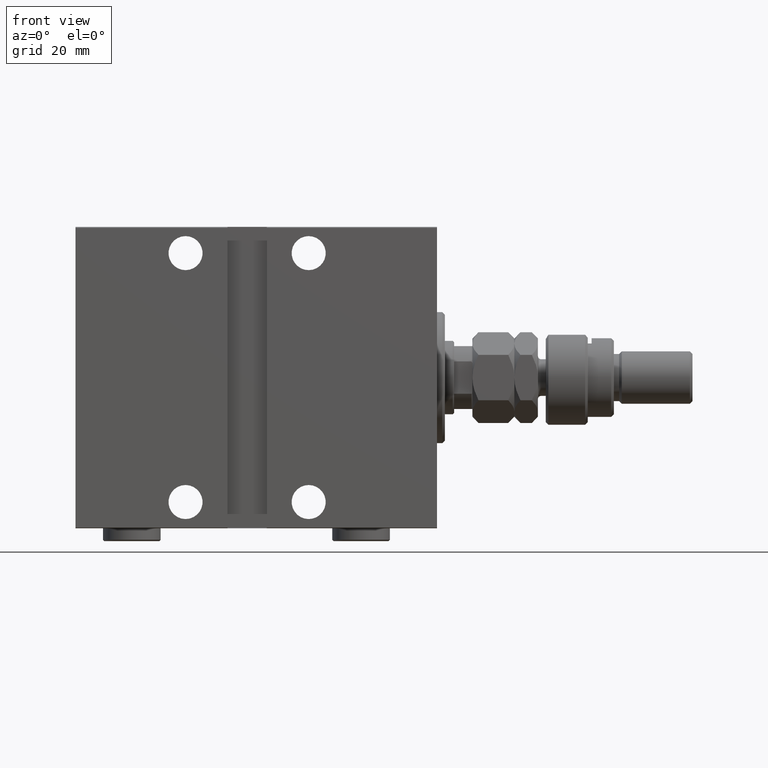
[diagram: clean part render]
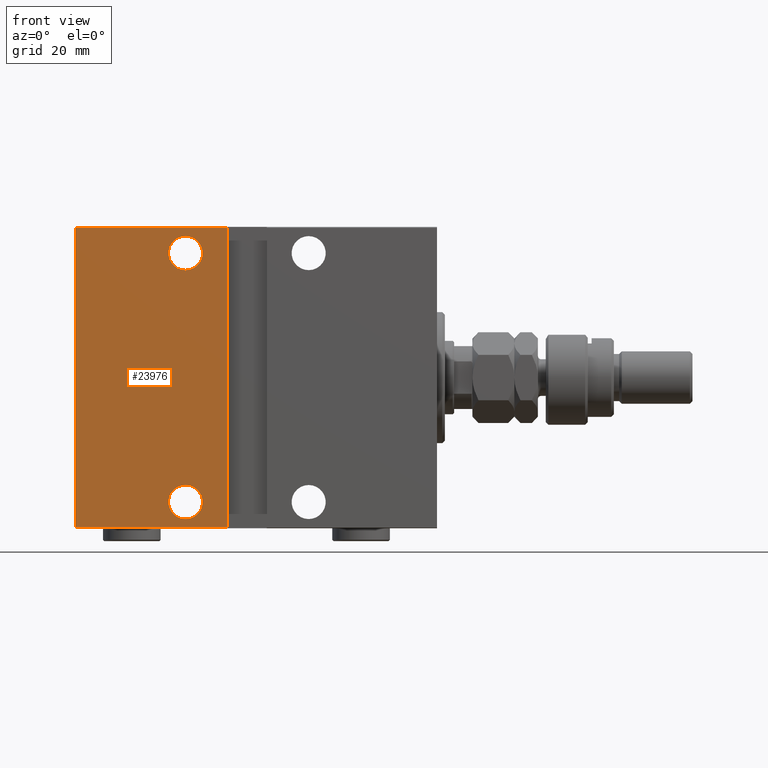
[diagram: same view with one face highlighted and labeled with its STEP entity id]
A machine part, front view. The second image highlights one B-rep face of the part: STEP entity #23976.
In plain terms, the highlighted planar face has unit normal (0, 1, 0).
Its self-contained STEP definition (entity closure, byte-faithful):
#588 = CARTESIAN_POINT ( 'NONE',  ( 96.00000000000000000, 45.00000000000002132, 47.50000000000001421 ) ) ;
#2031 = VECTOR ( 'NONE', #12045, 1000.000000000000000 ) ;
#2429 = ORIENTED_EDGE ( 'NONE', *, *, #10667, .T. ) ;
#2479 = LINE ( 'NONE', #39730, #17426 ) ;
#2963 = AXIS2_PLACEMENT_3D ( 'NONE', #11330, #33529, #36872 ) ;
#2982 = EDGE_CURVE ( 'NONE', #44550, #25722, #23945, .T. ) ;
#4734 = VERTEX_POINT ( 'NONE', #10169 ) ;
#4801 = ORIENTED_EDGE ( 'NONE', *, *, #39607, .T. ) ;
#5421 = EDGE_CURVE ( 'NONE', #31423, #4734, #40134, .T. ) ;
#6702 = FACE_BOUND ( 'NONE', #19313, .T. ) ;
#8085 = EDGE_LOOP ( 'NONE', ( #26019, #2429 ) ) ;
#8763 = DIRECTION ( 'NONE',  ( 0.000000000000000000, -1.000000000000000000, 0.000000000000000000 ) ) ;
#9001 = VECTOR ( 'NONE', #46292, 1000.000000000000000 ) ;
#9998 = VERTEX_POINT ( 'NONE', #21296 ) ;
#10169 = CARTESIAN_POINT ( 'NONE',  ( 95.99999999999997158, 45.00000000000000711, -53.99999999999999289 ) ) ;
#10529 = DIRECTION ( 'NONE',  ( 0.000000000000000000, -1.000000000000000000, 0.000000000000000000 ) ) ;
#10667 = EDGE_CURVE ( 'NONE', #4734, #31423, #37141, .T. ) ;
#11177 = AXIS2_PLACEMENT_3D ( 'NONE', #38856, #16419, #38152 ) ;
#11330 = CARTESIAN_POINT ( 'NONE',  ( 96.00000000000000000, 45.00000000000002132, 47.50000000000001421 ) ) ;
#12045 = DIRECTION ( 'NONE',  ( 1.000000000000000000, 0.000000000000000000, 0.000000000000000000 ) ) ;
#12943 = ORIENTED_EDGE ( 'NONE', *, *, #2982, .F. ) ;
#14102 = FACE_OUTER_BOUND ( 'NONE', #36762, .T. ) ;
#15152 = DIRECTION ( 'NONE',  ( 0.000000000000000000, -1.000000000000000000, 0.000000000000000000 ) ) ;
#16419 = DIRECTION ( 'NONE',  ( 0.000000000000000000, -1.000000000000000000, 0.000000000000000000 ) ) ;
#17426 = VECTOR ( 'NONE', #21594, 1000.000000000000000 ) ;
#17630 = CARTESIAN_POINT ( 'NONE',  ( 96.00000000000000000, 45.00000000000002132, 54.00000000000001421 ) ) ;
#18072 = AXIS2_PLACEMENT_3D ( 'NONE', #588, #15152, #29726 ) ;
#19313 = EDGE_LOOP ( 'NONE', ( #37441, #4801 ) ) ;
#19419 = DIRECTION ( 'NONE',  ( 0.000000000000000000, 0.000000000000000000, 1.000000000000000000 ) ) ;
#20345 = VERTEX_POINT ( 'NONE', #17630 ) ;
#20597 = VERTEX_POINT ( 'NONE', #30724 ) ;
#20820 = CARTESIAN_POINT ( 'NONE',  ( 138.0000000000000000, 45.00000000000001421, -57.20000000000001705 ) ) ;
#21296 = CARTESIAN_POINT ( 'NONE',  ( 79.99999999999997158, 45.00000000000002132, -57.20000000000001705 ) ) ;
#21594 = DIRECTION ( 'NONE',  ( -1.000000000000000000, 0.000000000000000000, 0.000000000000000000 ) ) ;
#21973 = CARTESIAN_POINT ( 'NONE',  ( 95.99999999999997158, 45.00000000000000711, -40.99999999999998579 ) ) ;
#22803 = CARTESIAN_POINT ( 'NONE',  ( 138.0000000000000000, 45.00000000000001421, 57.20000000000004547 ) ) ;
#22831 = CIRCLE ( 'NONE', #2963, 6.500000000000005329 ) ;
#23945 = LINE ( 'NONE', #34933, #42331 ) ;
#23976 = ADVANCED_FACE ( 'NONE', ( #42994, #6702, #14102 ), #28685, .F. ) ;
#25099 = DIRECTION ( 'NONE',  ( 0.000000000000000000, -0.000000000000000000, -1.000000000000000000 ) ) ;
#25309 = ORIENTED_EDGE ( 'NONE', *, *, #38191, .F. ) ;
#25722 = VERTEX_POINT ( 'NONE', #36115 ) ;
#26006 = CARTESIAN_POINT ( 'NONE',  ( 95.99999999999997158, 45.00000000000000711, -47.49999999999998579 ) ) ;
#26019 = ORIENTED_EDGE ( 'NONE', *, *, #5421, .T. ) ;
#26462 = DIRECTION ( 'NONE',  ( 0.000000000000000000, 0.000000000000000000, -1.000000000000000000 ) ) ;
#28491 = ORIENTED_EDGE ( 'NONE', *, *, #38565, .T. ) ;
#28685 = PLANE ( 'NONE',  #32329 ) ;
#29410 = CARTESIAN_POINT ( 'NONE',  ( 96.00000000000000000, 45.00000000000002132, 41.00000000000000711 ) ) ;
#29726 = DIRECTION ( 'NONE',  ( 0.000000000000000000, 0.000000000000000000, -1.000000000000000000 ) ) ;
#30724 = CARTESIAN_POINT ( 'NONE',  ( 79.99999999999995737, 45.00000000000000711, 57.20000000000004547 ) ) ;
#31423 = VERTEX_POINT ( 'NONE', #21973 ) ;
#32329 = AXIS2_PLACEMENT_3D ( 'NONE', #43229, #10529, #25099 ) ;
#33320 = LINE ( 'NONE', #22803, #2031 ) ;
#33525 = EDGE_CURVE ( 'NONE', #20345, #44615, #40945, .T. ) ;
#33529 = DIRECTION ( 'NONE',  ( 0.000000000000000000, -1.000000000000000000, 0.000000000000000000 ) ) ;
#34400 = EDGE_CURVE ( 'NONE', #20597, #25722, #33320, .T. ) ;
#34933 = CARTESIAN_POINT ( 'NONE',  ( 138.0000000000000000, 45.00000000000001421, -57.50000000000000711 ) ) ;
#35097 = CARTESIAN_POINT ( 'NONE',  ( 79.99999999999997158, 45.00000000000002132, -57.50000000000010658 ) ) ;
#36115 = CARTESIAN_POINT ( 'NONE',  ( 138.0000000000000000, 45.00000000000001421, 57.20000000000001705 ) ) ;
#36630 = LINE ( 'NONE', #35097, #9001 ) ;
#36762 = EDGE_LOOP ( 'NONE', ( #12943, #28491, #25309, #37443 ) ) ;
#36872 = DIRECTION ( 'NONE',  ( 0.000000000000000000, 0.000000000000000000, -1.000000000000000000 ) ) ;
#37141 = CIRCLE ( 'NONE', #38650, 6.500000000000005329 ) ;
#37441 = ORIENTED_EDGE ( 'NONE', *, *, #33525, .T. ) ;
#37443 = ORIENTED_EDGE ( 'NONE', *, *, #34400, .T. ) ;
#38152 = DIRECTION ( 'NONE',  ( 0.000000000000000000, 0.000000000000000000, -1.000000000000000000 ) ) ;
#38191 = EDGE_CURVE ( 'NONE', #20597, #9998, #36630, .T. ) ;
#38565 = EDGE_CURVE ( 'NONE', #44550, #9998, #2479, .T. ) ;
#38650 = AXIS2_PLACEMENT_3D ( 'NONE', #26006, #8763, #26462 ) ;
#38856 = CARTESIAN_POINT ( 'NONE',  ( 95.99999999999997158, 45.00000000000000711, -47.49999999999998579 ) ) ;
#39607 = EDGE_CURVE ( 'NONE', #44615, #20345, #22831, .T. ) ;
#39730 = CARTESIAN_POINT ( 'NONE',  ( 138.0000000000000000, 45.00000000000001421, -57.20000000000001705 ) ) ;
#40134 = CIRCLE ( 'NONE', #11177, 6.500000000000005329 ) ;
#40945 = CIRCLE ( 'NONE', #18072, 6.500000000000005329 ) ;
#42331 = VECTOR ( 'NONE', #19419, 1000.000000000000000 ) ;
#42994 = FACE_BOUND ( 'NONE', #8085, .T. ) ;
#43229 = CARTESIAN_POINT ( 'NONE',  ( 138.0000000000000000, 45.00000000000001421, -57.50000000000000711 ) ) ;
#44550 = VERTEX_POINT ( 'NONE', #20820 ) ;
#44615 = VERTEX_POINT ( 'NONE', #29410 ) ;
#46292 = DIRECTION ( 'NONE',  ( 1.206764157201255812E-16, 1.206764157201255812E-16, -1.000000000000000000 ) ) ;